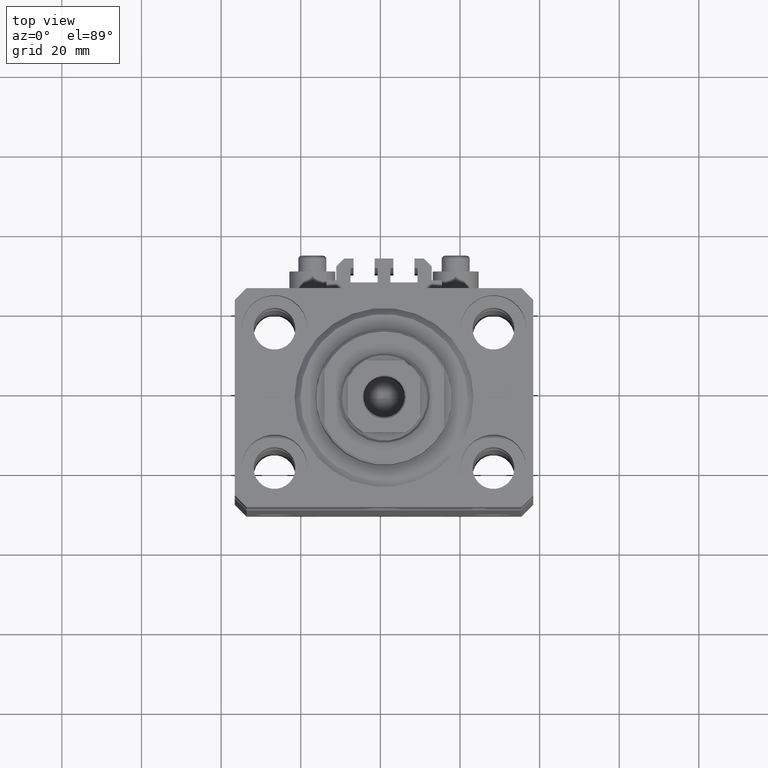
[diagram: clean part render]
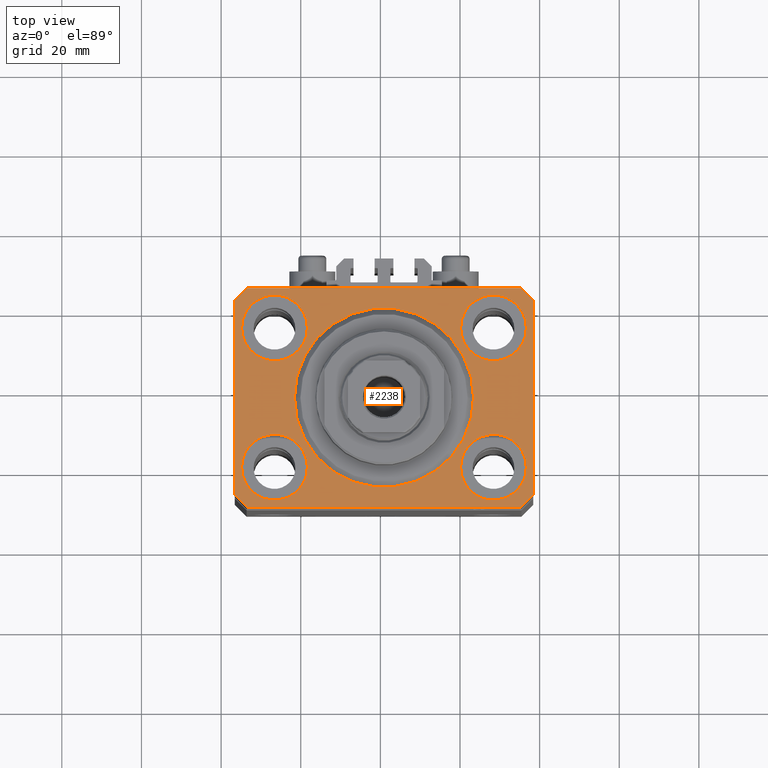
[diagram: same view with one face highlighted and labeled with its STEP entity id]
A machine part, top view. The second image highlights one B-rep face of the part: STEP entity #2238.
In plain terms, the highlighted planar face has unit normal (0, 0, 1).
Its self-contained STEP definition (entity closure, byte-faithful):
#61 = VERTEX_POINT ( 'NONE', #34106 ) ;
#64 = CARTESIAN_POINT ( 'NONE',  ( -34.49999999999999289, 27.50000000000000000, 0.000000000000000000 ) ) ;
#244 = CIRCLE ( 'NONE', #2526, 8.250000000000000000 ) ;
#874 = LINE ( 'NONE', #14383, #45847 ) ;
#1060 = VERTEX_POINT ( 'NONE', #23885 ) ;
#1172 = CARTESIAN_POINT ( 'NONE',  ( 37.49999999999999289, -24.50000000000000000, 0.000000000000000000 ) ) ;
#1696 = AXIS2_PLACEMENT_3D ( 'NONE', #10006, #43765, #25100 ) ;
#1728 = CIRCLE ( 'NONE', #28507, 8.249999999999992895 ) ;
#2238 = ADVANCED_FACE ( 'NONE', ( #27183, #8510, #15927, #30294, #31010, #26708 ), #42267, .T. ) ;
#2290 = LINE ( 'NONE', #30789, #11684 ) ;
#2526 = AXIS2_PLACEMENT_3D ( 'NONE', #30445, #45053, #12960 ) ;
#3417 = LINE ( 'NONE', #18033, #3856 ) ;
#3519 = AXIS2_PLACEMENT_3D ( 'NONE', #15075, #29677, #22737 ) ;
#3662 = ORIENTED_EDGE ( 'NONE', *, *, #6478, .F. ) ;
#3679 = CIRCLE ( 'NONE', #28150, 8.250000000000000000 ) ;
#3856 = VECTOR ( 'NONE', #13234, 1000.000000000000000 ) ;
#3951 = DIRECTION ( 'NONE',  ( 0.000000000000000000, -1.000000000000000000, 0.000000000000000000 ) ) ;
#4281 = CARTESIAN_POINT ( 'NONE',  ( 34.49999999999999289, -27.49999999999999645, 0.000000000000000000 ) ) ;
#4655 = EDGE_CURVE ( 'NONE', #31421, #29938, #3417, .T. ) ;
#5154 = CARTESIAN_POINT ( 'NONE',  ( 0.000000000000000000, 0.000000000000000000, 0.000000000000000000 ) ) ;
#5451 = DIRECTION ( 'NONE',  ( 1.076236605503979380E-14, 1.000000000000000000, 0.000000000000000000 ) ) ;
#5817 = ORIENTED_EDGE ( 'NONE', *, *, #4655, .T. ) ;
#6280 = ORIENTED_EDGE ( 'NONE', *, *, #8566, .F. ) ;
#6478 = EDGE_CURVE ( 'NONE', #27523, #27578, #27613, .T. ) ;
#7551 = CARTESIAN_POINT ( 'NONE',  ( -37.49999999999999289, 24.50000000000000000, 0.000000000000000000 ) ) ;
#8217 = CARTESIAN_POINT ( 'NONE',  ( -34.49999999999999289, 27.50000000000000000, 0.000000000000000000 ) ) ;
#8270 = EDGE_LOOP ( 'NONE', ( #3662, #22083 ) ) ;
#8510 = FACE_BOUND ( 'NONE', #29573, .T. ) ;
#8566 = EDGE_CURVE ( 'NONE', #42771, #39632, #31509, .T. ) ;
#9045 = CARTESIAN_POINT ( 'NONE',  ( 37.49999999999999289, -24.50000000000000000, 0.000000000000000000 ) ) ;
#9073 = ORIENTED_EDGE ( 'NONE', *, *, #39225, .T. ) ;
#9733 = LINE ( 'NONE', #7551, #10482 ) ;
#9837 = DIRECTION ( 'NONE',  ( 0.000000000000000000, 0.000000000000000000, 1.000000000000000000 ) ) ;
#10006 = CARTESIAN_POINT ( 'NONE',  ( 0.000000000000000000, 0.000000000000000000, 0.000000000000000000 ) ) ;
#10397 = EDGE_CURVE ( 'NONE', #46340, #20008, #244, .T. ) ;
#10413 = EDGE_CURVE ( 'NONE', #20008, #46340, #27753, .T. ) ;
#10437 = CARTESIAN_POINT ( 'NONE',  ( -37.49999999999999289, -24.50000000000000000, 0.000000000000000000 ) ) ;
#10442 = EDGE_CURVE ( 'NONE', #1060, #13934, #16295, .T. ) ;
#10482 = VECTOR ( 'NONE', #3951, 1000.000000000000000 ) ;
#10637 = ORIENTED_EDGE ( 'NONE', *, *, #38017, .F. ) ;
#10665 = DIRECTION ( 'NONE',  ( 1.000000000000000000, 0.000000000000000000, 0.000000000000000000 ) ) ;
#10699 = CARTESIAN_POINT ( 'NONE',  ( 34.50000000000056843, 27.50000000000000000, 0.000000000000000000 ) ) ;
#11684 = VECTOR ( 'NONE', #16179, 1000.000000000000114 ) ;
#12123 = DIRECTION ( 'NONE',  ( 1.000000000000000000, 0.000000000000000000, 0.000000000000000000 ) ) ;
#12208 = ORIENTED_EDGE ( 'NONE', *, *, #10413, .F. ) ;
#12706 = ORIENTED_EDGE ( 'NONE', *, *, #10397, .F. ) ;
#12960 = DIRECTION ( 'NONE',  ( 1.000000000000000000, 0.000000000000000000, 0.000000000000000000 ) ) ;
#13234 = DIRECTION ( 'NONE',  ( -1.000000000000000000, 0.000000000000000000, 0.000000000000000000 ) ) ;
#13451 = ORIENTED_EDGE ( 'NONE', *, *, #37117, .T. ) ;
#13671 = CARTESIAN_POINT ( 'NONE',  ( 27.49999999999999645, 17.50000000000001066, 0.000000000000000000 ) ) ;
#13705 = AXIS2_PLACEMENT_3D ( 'NONE', #5154, #44906, #19532 ) ;
#13760 = VECTOR ( 'NONE', #39118, 1000.000000000000114 ) ;
#13930 = CIRCLE ( 'NONE', #40692, 22.50000000000000355 ) ;
#13934 = VERTEX_POINT ( 'NONE', #22671 ) ;
#14099 = EDGE_CURVE ( 'NONE', #24633, #38416, #2290, .T. ) ;
#14149 = EDGE_CURVE ( 'NONE', #13934, #1060, #1728, .T. ) ;
#14383 = CARTESIAN_POINT ( 'NONE',  ( -34.49999999999998579, -27.49999999999999645, 0.000000000000000000 ) ) ;
#14402 = ORIENTED_EDGE ( 'NONE', *, *, #14099, .T. ) ;
#14648 = AXIS2_PLACEMENT_3D ( 'NONE', #39103, #20924, #35516 ) ;
#14803 = ORIENTED_EDGE ( 'NONE', *, *, #29254, .F. ) ;
#15075 = CARTESIAN_POINT ( 'NONE',  ( -27.50000000000000355, 17.50000000000000000, 0.000000000000000000 ) ) ;
#15755 = LINE ( 'NONE', #9045, #18508 ) ;
#15927 = FACE_BOUND ( 'NONE', #18574, .T. ) ;
#15963 = VERTEX_POINT ( 'NONE', #33936 ) ;
#16179 = DIRECTION ( 'NONE',  ( 0.7071067811865474617, 0.7071067811865474617, 0.000000000000000000 ) ) ;
#16295 = CIRCLE ( 'NONE', #29292, 8.249999999999992895 ) ;
#17427 = EDGE_LOOP ( 'NONE', ( #5817, #13451, #32592, #35004, #31236, #14402, #9073, #33584 ) ) ;
#18033 = CARTESIAN_POINT ( 'NONE',  ( 34.50000000000056843, 27.50000000000000000, 0.000000000000000000 ) ) ;
#18508 = VECTOR ( 'NONE', #5451, 1000.000000000000000 ) ;
#18574 = EDGE_LOOP ( 'NONE', ( #46432, #36900 ) ) ;
#18708 = DIRECTION ( 'NONE',  ( 0.000000000000000000, 0.000000000000000000, 1.000000000000000000 ) ) ;
#18822 = EDGE_LOOP ( 'NONE', ( #12706, #12208 ) ) ;
#18826 = CARTESIAN_POINT ( 'NONE',  ( -34.49999999999998579, -27.49999999999999645, 0.000000000000000000 ) ) ;
#19000 = EDGE_CURVE ( 'NONE', #15963, #32408, #46848, .T. ) ;
#19532 = DIRECTION ( 'NONE',  ( 1.000000000000000000, 0.000000000000000000, -0.000000000000000000 ) ) ;
#19682 = CARTESIAN_POINT ( 'NONE',  ( -27.50000000000000355, -17.50000000000000000, 0.000000000000000000 ) ) ;
#20008 = VERTEX_POINT ( 'NONE', #36301 ) ;
#20924 = DIRECTION ( 'NONE',  ( 0.000000000000000000, 0.000000000000000000, 1.000000000000000000 ) ) ;
#20981 = EDGE_CURVE ( 'NONE', #27578, #27523, #36383, .T. ) ;
#21185 = EDGE_LOOP ( 'NONE', ( #41500, #6280 ) ) ;
#22083 = ORIENTED_EDGE ( 'NONE', *, *, #20981, .F. ) ;
#22308 = CIRCLE ( 'NONE', #14648, 8.250000000000000000 ) ;
#22586 = CARTESIAN_POINT ( 'NONE',  ( 35.75000000000000711, -17.50000000000000000, 0.000000000000000000 ) ) ;
#22671 = CARTESIAN_POINT ( 'NONE',  ( 19.25000000000000000, 17.50000000000001066, 0.000000000000000000 ) ) ;
#22737 = DIRECTION ( 'NONE',  ( 1.000000000000000000, 0.000000000000000000, 0.000000000000000000 ) ) ;
#22831 = DIRECTION ( 'NONE',  ( -0.7071067811865471286, -0.7071067811865479058, 0.000000000000000000 ) ) ;
#23015 = VECTOR ( 'NONE', #22831, 1000.000000000000000 ) ;
#23885 = CARTESIAN_POINT ( 'NONE',  ( 35.74999999999999289, 17.50000000000001066, 0.000000000000000000 ) ) ;
#24345 = CARTESIAN_POINT ( 'NONE',  ( -35.75000000000000711, 17.50000000000000000, 0.000000000000000000 ) ) ;
#24562 = DIRECTION ( 'NONE',  ( 0.000000000000000000, 0.000000000000000000, 1.000000000000000000 ) ) ;
#24633 = VERTEX_POINT ( 'NONE', #4281 ) ;
#25100 = DIRECTION ( 'NONE',  ( 1.000000000000000000, 0.000000000000000000, 0.000000000000000000 ) ) ;
#25462 = LINE ( 'NONE', #42707, #13760 ) ;
#26338 = CARTESIAN_POINT ( 'NONE',  ( 0.000000000000000000, 0.000000000000000000, 0.000000000000000000 ) ) ;
#26427 = LINE ( 'NONE', #8217, #23015 ) ;
#26708 = FACE_OUTER_BOUND ( 'NONE', #17427, .T. ) ;
#26796 = DIRECTION ( 'NONE',  ( 0.000000000000000000, 0.000000000000000000, 1.000000000000000000 ) ) ;
#27183 = FACE_BOUND ( 'NONE', #18822, .T. ) ;
#27501 = CARTESIAN_POINT ( 'NONE',  ( 37.50000000000051870, 24.49999999999995381, 0.000000000000000000 ) ) ;
#27523 = VERTEX_POINT ( 'NONE', #37292 ) ;
#27578 = VERTEX_POINT ( 'NONE', #24345 ) ;
#27613 = CIRCLE ( 'NONE', #44426, 8.250000000000000000 ) ;
#27709 = EDGE_CURVE ( 'NONE', #30642, #15963, #9733, .T. ) ;
#27753 = CIRCLE ( 'NONE', #40779, 8.250000000000000000 ) ;
#28150 = AXIS2_PLACEMENT_3D ( 'NONE', #29385, #40409, #36355 ) ;
#28507 = AXIS2_PLACEMENT_3D ( 'NONE', #46835, #24562, #10665 ) ;
#28732 = CARTESIAN_POINT ( 'NONE',  ( -19.25000000000000355, -17.50000000000000000, 0.000000000000000000 ) ) ;
#29254 = EDGE_CURVE ( 'NONE', #61, #43423, #3679, .T. ) ;
#29292 = AXIS2_PLACEMENT_3D ( 'NONE', #13671, #9837, #46484 ) ;
#29385 = CARTESIAN_POINT ( 'NONE',  ( 27.50000000000000355, -17.50000000000000000, 0.000000000000000000 ) ) ;
#29573 = EDGE_LOOP ( 'NONE', ( #10637, #14803 ) ) ;
#29677 = DIRECTION ( 'NONE',  ( 0.000000000000000000, 0.000000000000000000, 1.000000000000000000 ) ) ;
#29938 = VERTEX_POINT ( 'NONE', #64 ) ;
#30294 = FACE_BOUND ( 'NONE', #8270, .T. ) ;
#30445 = CARTESIAN_POINT ( 'NONE',  ( -27.50000000000000355, -17.50000000000000000, 0.000000000000000000 ) ) ;
#30642 = VERTEX_POINT ( 'NONE', #39606 ) ;
#30683 = DIRECTION ( 'NONE',  ( 1.000000000000000000, 0.000000000000000000, 0.000000000000000000 ) ) ;
#30789 = CARTESIAN_POINT ( 'NONE',  ( 34.49999999999999289, -27.49999999999999645, 0.000000000000000000 ) ) ;
#31010 = FACE_BOUND ( 'NONE', #21185, .T. ) ;
#31236 = ORIENTED_EDGE ( 'NONE', *, *, #33841, .T. ) ;
#31421 = VERTEX_POINT ( 'NONE', #10699 ) ;
#31509 = CIRCLE ( 'NONE', #1696, 22.50000000000000355 ) ;
#32408 = VERTEX_POINT ( 'NONE', #18826 ) ;
#32592 = ORIENTED_EDGE ( 'NONE', *, *, #27709, .T. ) ;
#33275 = VECTOR ( 'NONE', #35831, 1000.000000000000000 ) ;
#33511 = CARTESIAN_POINT ( 'NONE',  ( 22.50000000000000355, 0.000000000000000000, 0.000000000000000000 ) ) ;
#33584 = ORIENTED_EDGE ( 'NONE', *, *, #34166, .T. ) ;
#33841 = EDGE_CURVE ( 'NONE', #32408, #24633, #874, .T. ) ;
#33936 = CARTESIAN_POINT ( 'NONE',  ( -37.49999999999999289, -24.50000000000000000, 0.000000000000000000 ) ) ;
#33985 = DIRECTION ( 'NONE',  ( 1.000000000000000000, 0.000000000000000000, 0.000000000000000000 ) ) ;
#34106 = CARTESIAN_POINT ( 'NONE',  ( 19.25000000000000000, -17.50000000000000000, 0.000000000000000000 ) ) ;
#34166 = EDGE_CURVE ( 'NONE', #38542, #31421, #25462, .T. ) ;
#34278 = DIRECTION ( 'NONE',  ( 0.000000000000000000, 0.000000000000000000, 1.000000000000000000 ) ) ;
#35004 = ORIENTED_EDGE ( 'NONE', *, *, #19000, .T. ) ;
#35516 = DIRECTION ( 'NONE',  ( 1.000000000000000000, 0.000000000000000000, 0.000000000000000000 ) ) ;
#35831 = DIRECTION ( 'NONE',  ( 0.7071067811865483499, -0.7071067811865466846, 0.000000000000000000 ) ) ;
#36301 = CARTESIAN_POINT ( 'NONE',  ( -35.75000000000000711, -17.50000000000000000, 0.000000000000000000 ) ) ;
#36355 = DIRECTION ( 'NONE',  ( 1.000000000000000000, 0.000000000000000000, 0.000000000000000000 ) ) ;
#36383 = CIRCLE ( 'NONE', #3519, 8.250000000000000000 ) ;
#36900 = ORIENTED_EDGE ( 'NONE', *, *, #14149, .F. ) ;
#37073 = CARTESIAN_POINT ( 'NONE',  ( -22.50000000000000355, 2.755455298081545172E-15, 0.000000000000000000 ) ) ;
#37117 = EDGE_CURVE ( 'NONE', #29938, #30642, #26427, .T. ) ;
#37292 = CARTESIAN_POINT ( 'NONE',  ( -19.25000000000000355, 17.50000000000000000, 0.000000000000000000 ) ) ;
#38017 = EDGE_CURVE ( 'NONE', #43423, #61, #22308, .T. ) ;
#38416 = VERTEX_POINT ( 'NONE', #1172 ) ;
#38542 = VERTEX_POINT ( 'NONE', #27501 ) ;
#39103 = CARTESIAN_POINT ( 'NONE',  ( 27.50000000000000355, -17.50000000000000000, 0.000000000000000000 ) ) ;
#39118 = DIRECTION ( 'NONE',  ( -0.7071067811865356934, 0.7071067811865594521, 0.000000000000000000 ) ) ;
#39225 = EDGE_CURVE ( 'NONE', #38416, #38542, #15755, .T. ) ;
#39562 = EDGE_CURVE ( 'NONE', #39632, #42771, #13930, .T. ) ;
#39606 = CARTESIAN_POINT ( 'NONE',  ( -37.49999999999999289, 24.50000000000000000, 0.000000000000000000 ) ) ;
#39632 = VERTEX_POINT ( 'NONE', #33511 ) ;
#40272 = CARTESIAN_POINT ( 'NONE',  ( -27.50000000000000355, 17.50000000000000000, 0.000000000000000000 ) ) ;
#40409 = DIRECTION ( 'NONE',  ( 0.000000000000000000, 0.000000000000000000, 1.000000000000000000 ) ) ;
#40692 = AXIS2_PLACEMENT_3D ( 'NONE', #26338, #26796, #33985 ) ;
#40779 = AXIS2_PLACEMENT_3D ( 'NONE', #19682, #34278, #30683 ) ;
#41500 = ORIENTED_EDGE ( 'NONE', *, *, #39562, .F. ) ;
#42267 = PLANE ( 'NONE',  #13705 ) ;
#42707 = CARTESIAN_POINT ( 'NONE',  ( 37.50000000000051870, 24.49999999999995381, 0.000000000000000000 ) ) ;
#42771 = VERTEX_POINT ( 'NONE', #37073 ) ;
#43423 = VERTEX_POINT ( 'NONE', #22586 ) ;
#43765 = DIRECTION ( 'NONE',  ( 0.000000000000000000, 0.000000000000000000, 1.000000000000000000 ) ) ;
#44426 = AXIS2_PLACEMENT_3D ( 'NONE', #40272, #18708, #47215 ) ;
#44906 = DIRECTION ( 'NONE',  ( 0.000000000000000000, 0.000000000000000000, 1.000000000000000000 ) ) ;
#45053 = DIRECTION ( 'NONE',  ( 0.000000000000000000, 0.000000000000000000, 1.000000000000000000 ) ) ;
#45847 = VECTOR ( 'NONE', #12123, 1000.000000000000000 ) ;
#46340 = VERTEX_POINT ( 'NONE', #28732 ) ;
#46432 = ORIENTED_EDGE ( 'NONE', *, *, #10442, .F. ) ;
#46484 = DIRECTION ( 'NONE',  ( 1.000000000000000000, 0.000000000000000000, 0.000000000000000000 ) ) ;
#46835 = CARTESIAN_POINT ( 'NONE',  ( 27.49999999999999645, 17.50000000000001066, 0.000000000000000000 ) ) ;
#46848 = LINE ( 'NONE', #10437, #33275 ) ;
#47215 = DIRECTION ( 'NONE',  ( 1.000000000000000000, 0.000000000000000000, 0.000000000000000000 ) ) ;